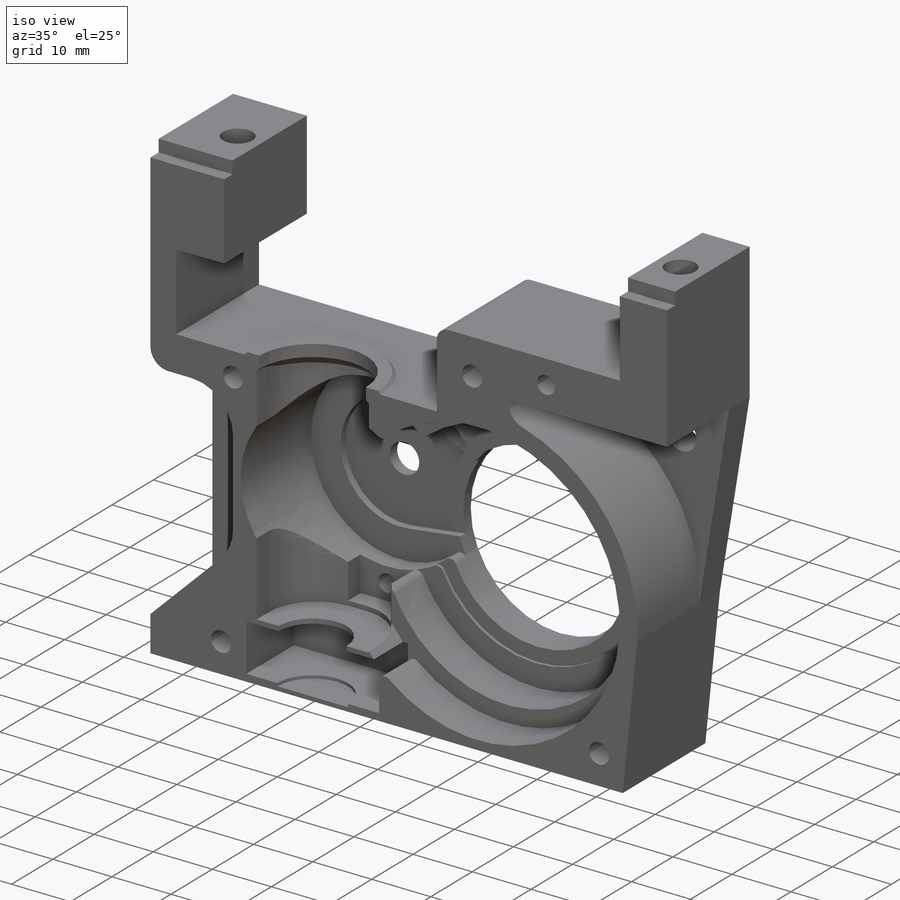
[diagram: iso view]
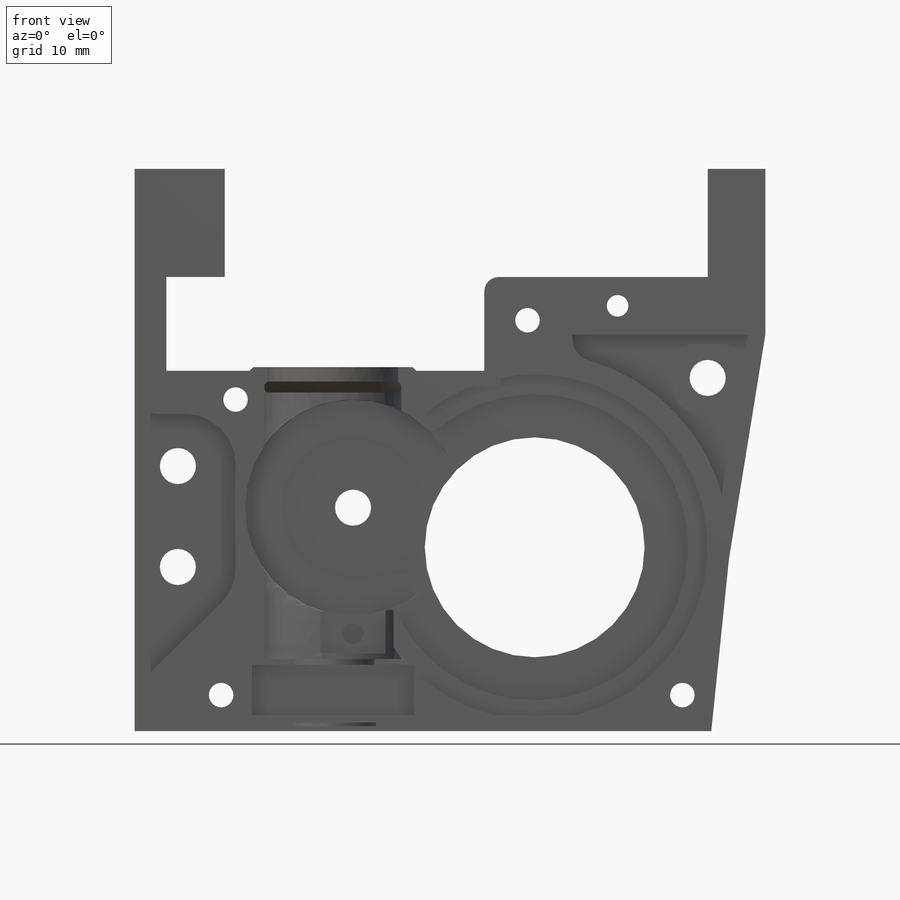
[diagram: front view]
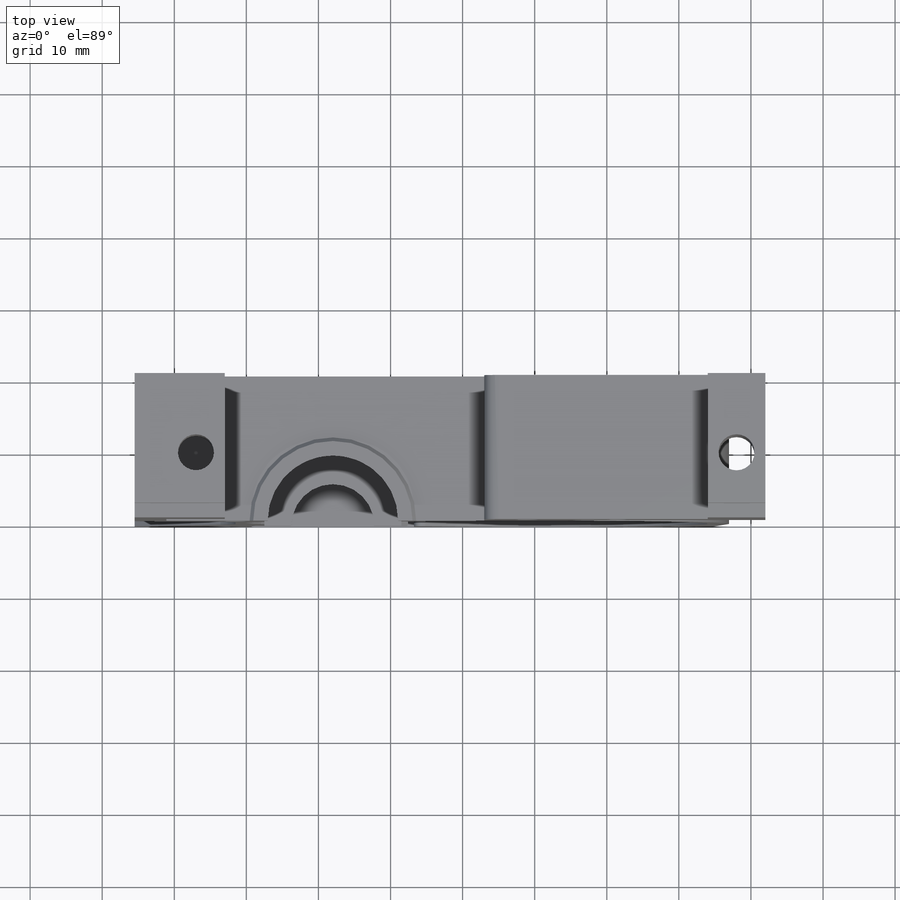
[diagram: top view]
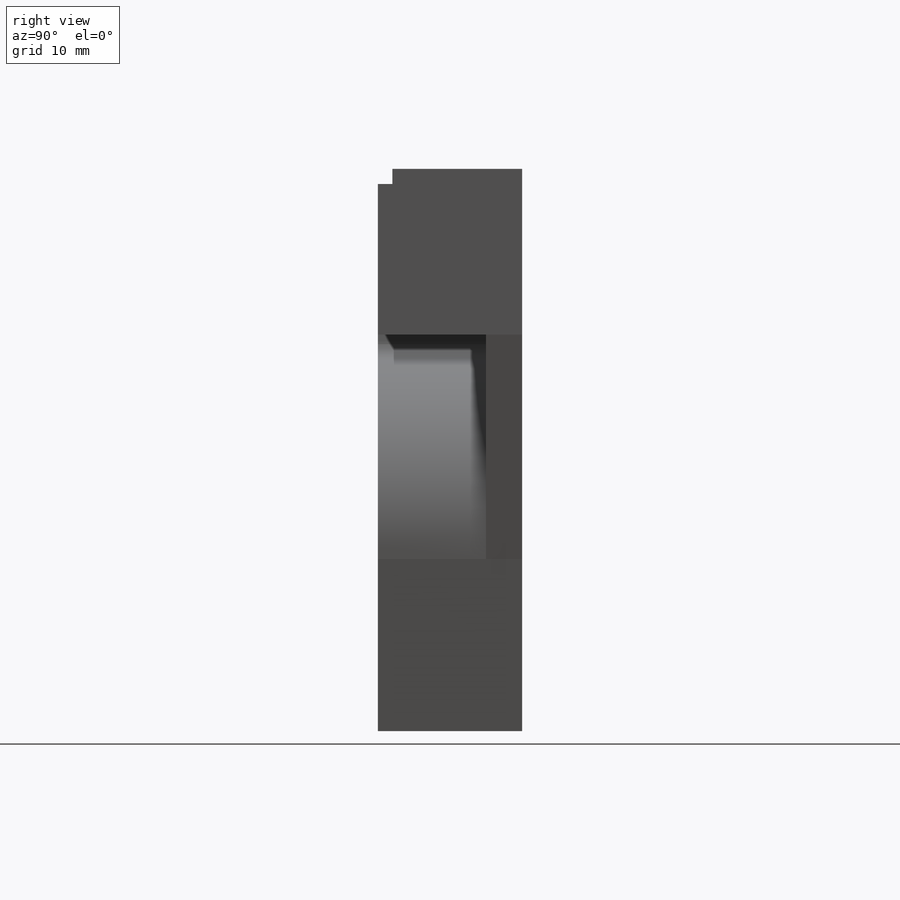
[diagram: right view]
SOLIDWORKS PART (.sldprt)
format: sldprt  version: not decoded by parser v0  size: 1,199,616 bytes
history: native  units: mm
features: sketch x36, cut_extrude x19, hole x6, extrude x4, fillet x2, chamfer x2, material x1, move_body x1 + 1 further entry (+19 scaffold rows collapsed; 5 parser-record rows omitted)
feature tree (96):
  scaffold x19  (default folders/planes/origin — collapsed)
  material  "Material <not specified>"
  "bottom housing"
  parser-record x5  (decoder bookkeeping rows leaked as tree rows — omitted from the tree; the rows remain in map.json)
  move_body  "Body-Move/Copy2"
  sketch  "Sketch1"  dims[c1.D1=0.0mm c1.D2=0.0mm c1.D3=0.0mm c1.D4=0.0mm c2.D3=0.0mm c2.D5=0.0mm]
  extrude  "Extrude1"  Depth=20mm
  sketch  "Sketch3"
  cut_extrude  "Extrude3"  Depth=11mm
  sketch  "Sketch4"  dims[D1=15.1mm]
  cut_extrude  "Extrude4"  [1 undecoded]
  fillet  "Fillet1"  Radius=8mm
  sketch  "Sketch2"
  cut_extrude  "Extrude2"  Depth=7mm
  chamfer  "Chamfer1"  Distance=1.5mm Angle=45deg
  sketch  "Sketch5"  dims[D1=8.05mm]
  cut_extrude  "Extrude5"  [1 undecoded]
  hole  "CBORE for M3 Pan Head Machine Screw1"  Diameter=3.4mm Depth=20mm
  sketch  "3DSketch1"  dims[c1.D1=~2.735195mm c1.D8=4.5mm c1.D2=~3.318392mm c2.D1=5.0mm c2.D3=~4.546518mm c3.D1=5.0mm c3.D4=~12.234514mm c3.D8=15.0mm c3.D5=~5.639709mm c4.D1=6.0mm c4.D6=~5.188422mm c5.D1=6.0mm c5.D7=~4.064646mm c6.D1=4.0mm c6.D4=15.0mm c7.D1=15.0mm]
  sketch  "Sketch11"  dims[hole-wizard template sketch: 43 standard entries collapsed; hole parameters kept: c12.C'Bore Dia.=6.5mm c12.C'Bore Depth=4.0mm]
  sketch  "Sketch12"  dims[c1.D1=5.0mm c1.D2=4.0mm c1.D3=6.0mm c1.D4=4.0mm c1.D5=6.0mm c2.D2=4.0mm c2.D3=6.0mm c2.D4=4.0mm c2.D5=6.0mm c2.D6=15.0mm c3.D2=4.0mm c3.D3=6.0mm c3.D6=9.0mm]
  cut_extrude  "Extrude10"  [1 undecoded]
  sketch  "Sketch14"  dims[D1=30.5mm]
  cut_extrude  "Extrude13"  [1 undecoded]
  sketch  "Sketch16"  dims[c1.D1=3.0mm c1.D2=10.0mm c1.D3=5.0mm c2.D2=10.0mm]
  cut_extrude  "Extrude14"  Depth=10mm
  hole  "Ø3.0 (3) Diameter Hole1"  Diameter=3mm Depth=15mm
  sketch  "3DSketch2"  dims[c1.D1=~46.459644mm c1.D2=47.0mm c2.D2=~21.216979mm c2.D4=22.0mm c2.D3=~3.136178mm c3.D2=5.0mm c4.D2=22.0mm c4.D4=22.0mm c4.D1=4.0mm c5.D2=3.5mm c5.D3=3.5mm]
  sketch  "Sketch17"  dims[hole-wizard template sketch: 49 standard entries collapsed; hole parameters kept: c15.Drill Angle=180.0deg]
  hole  "Ø3.0 (3) Diameter Hole2"  Diameter=3mm Depth=20mm
  sketch  "3DSketch3"  dims[c1.D1=~15.168766mm c1.D3=16.0mm c1.D2=3.7495mm c2.D1=4.0mm c3.D1=36.05mm c3.D3=20.5mm c4.D1=~15.524175mm c4.D2=~15.524175mm]
  sketch  "Sketch18"  dims[hole-wizard template sketch: 50 standard entries collapsed; hole parameters above]
  sketch  "Sketch19"  dims[D1=2.1mm]
  cut_extrude  "Extrude15"  Depth=2mm
  sketch  "Sketch21"  dims[D1=0.0mm D2=3.0mm]
  extrude  "Extrude16"  Depth=0.5mm
  chamfer  "Chamfer2"  Distance=1mm Angle=45deg
  sketch  "Sketch22"  dims[D1=8.1mm]
  cut_extrude  "Extrude17"  Depth=2mm
  sketch  "Sketch25"
  cut_extrude  "Extrude19"  Depth=11.5mm
  sketch  "Sketch26"
  extrude  "Extrude21"  Depth=5mm
  hole  "Ø5.0 (5) Diameter Hole1"  Diameter=5mm Depth=15mm
  sketch  "3DSketch4"
  sketch  "Sketch27"  dims[hole-wizard template sketch: 47 standard entries collapsed; hole parameters kept: c15.Hole Depth=15.0mm c15.D3=~14.816244mm c15.Drill Angle=180.0deg]
  sketch  "Sketch28"  dims[D1=0.0mm]
  extrude  "Extrude22"  Depth=5mm
  hole  "Ø5.0 (5) Diameter Hole2"  Diameter=5mm Depth=15mm
  sketch  "3DSketch5"
  sketch  "Sketch29"  dims[hole-wizard template sketch: 47 standard entries collapsed; hole parameters kept: c15.Hole Depth=15.0mm c15.D3=~14.816244mm c15.Drill Angle=180.0deg]
  sketch  "Sketch30"  dims[D1=42.5mm]
  cut_extrude  "Extrude23"  Depth=7mm
  sketch  "Sketch31"  dims[D1=30.0mm D2=25.2mm D3=5.5mm]
  cut_extrude  "Extrude27"  Depth=3mm
  hole  "Ø5.0 (5) Diameter Hole3"  Diameter=5mm Depth=15mm
  sketch  "3DSketch6"
  sketch  "Sketch32"  dims[hole-wizard template sketch: 47 standard entries collapsed; hole parameters kept: c15.Hole Depth=15.0mm c15.D3=~14.816244mm c15.Drill Angle=180.0deg]
  sketch  "Sketch33"  dims[c1.D1=3.0mm c1.D3=12.5mm c2.D1=2.9mm c2.D2=14.0mm c2.D3=14.0mm c3.D2=4.0mm c3.D3=17.5mm]
  cut_extrude  "Extrude28"  Depth=5mm
  sketch  "Sketch34"  dims[D1=9.0mm]
  cut_extrude  "Extrude29"  Depth=13mm
  sketch  "Sketch35"  dims[D1=3.0mm D2=20.0mm]
  cut_extrude  "Extrude30"  Depth=5mm
  sketch  "Sketch36"  dims[D1=2.3mm]
  cut_extrude  "Extrude31"  Depth=0.5mm
  sketch  "Sketch37"  dims[D1=12.0mm D2=7.0mm]
  cut_extrude  "Extrude33"  Depth=0.5mm
  fillet  "Fillet2"  Radius=1mm
  sketch  "Sketch38"  dims[D1=8.0mm]
  sketch  "Sketch39"  dims[D1=20.0mm]
  cut_extrude  "Extrude35"  Depth=1.2mm
  sketch  "Sketch41"
  cut_extrude  "Extrude36"  [1 undecoded]
decode coverage: 56 of 70 modeling features carry decoded parameters; 1 rows unclassified (native names shown)
note: ~ marks probable driven/reference dimensions
note: 5 parameter values undecoded
summary: no parameter record found for 5 features; Diameter pulled from absorbed wizard sketch
note: suppression state not decoded; provenance and decode notes live in map.json
